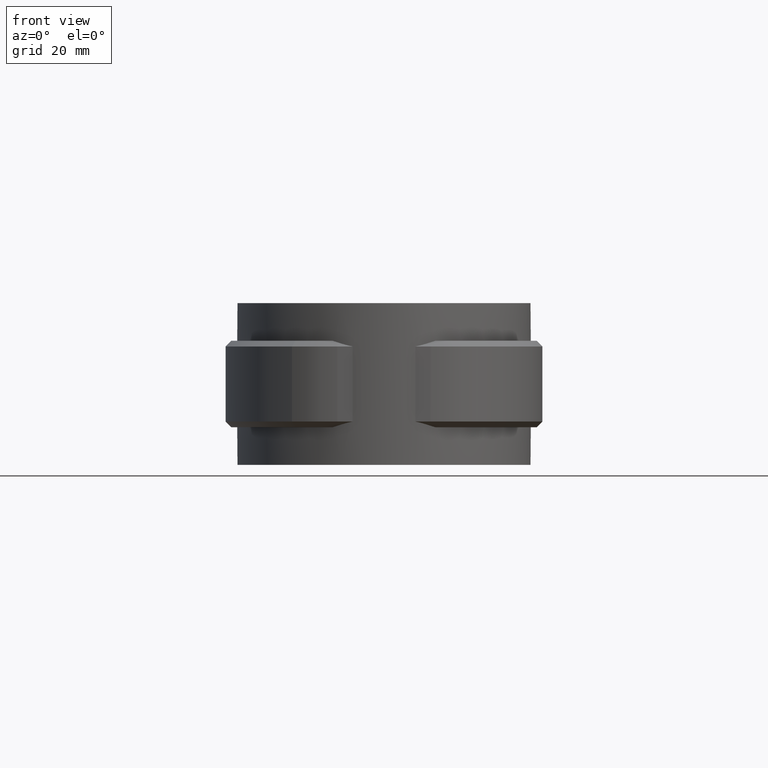
[diagram: clean part render]
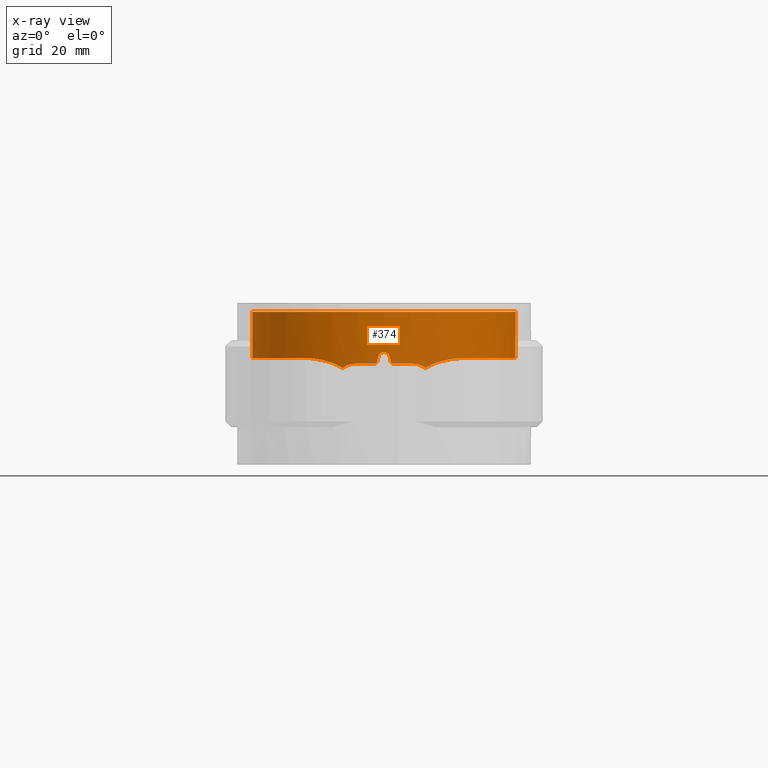
[diagram: x-ray — body ghosted, one internal face saturated and labeled with its STEP entity id]
A machine part, front view, then the same camera in x-ray: the body is ghosted and one INTERNAL B-rep face — a face not visible from any outside direction — is saturated and labeled: STEP entity #374.
In plain terms, the highlighted cylindrical surface (partial cylindrical patch) has radius 22.85 mm, axis along (0, 0, 1).
Its self-contained STEP definition (entity closure, byte-faithful):
#374 = ADVANCED_FACE( '', ( #733 ), #734, .F. );
#733 = FACE_OUTER_BOUND( '', #1682, .T. );
#734 = CYLINDRICAL_SURFACE( '', #1683, 22.8500000000000 );
#1682 = EDGE_LOOP( '', ( #3063, #3064, #3065, #3066, #3067, #3068, #3069, #3070, #3071, #3072, #3073, #3074, #3075, #3076, #3077, #3078 ) );
#1683 = AXIS2_PLACEMENT_3D( '', #3079, #3080, #3081 );
#3063 = ORIENTED_EDGE( '', *, *, #7074, .T. );
#3064 = ORIENTED_EDGE( '', *, *, #7043, .T. );
#3065 = ORIENTED_EDGE( '', *, *, #7047, .T. );
#3066 = ORIENTED_EDGE( '', *, *, #7078, .T. );
#3067 = ORIENTED_EDGE( '', *, *, #7079, .T. );
#3068 = ORIENTED_EDGE( '', *, *, #7080, .T. );
#3069 = ORIENTED_EDGE( '', *, *, #7081, .T. );
#3070 = ORIENTED_EDGE( '', *, *, #7082, .T. );
#3071 = ORIENTED_EDGE( '', *, *, #7083, .T. );
#3072 = ORIENTED_EDGE( '', *, *, #7084, .T. );
#3073 = ORIENTED_EDGE( '', *, *, #7075, .T. );
#3074 = ORIENTED_EDGE( '', *, *, #7067, .T. );
#3075 = ORIENTED_EDGE( '', *, *, #7085, .F. );
#3076 = ORIENTED_EDGE( '', *, *, #7034, .T. );
#3077 = ORIENTED_EDGE( '', *, *, #7086, .T. );
#3078 = ORIENTED_EDGE( '', *, *, #7063, .T. );
#3079 = CARTESIAN_POINT( '', ( 0.000000000000000, 0.000000000000000, 0.000000000000000 ) );
#3080 = DIRECTION( '', ( 0.000000000000000, 0.000000000000000, 1.00000000000000 ) );
#3081 = DIRECTION( '', ( 1.00000000000000, -6.12303176911189E-017, 0.000000000000000 ) );
#7034 = EDGE_CURVE( '', #8037, #8035, #8038, .T. );
#7043 = EDGE_CURVE( '', #8054, #8052, #8055, .T. );
#7047 = EDGE_CURVE( '', #8052, #8059, #8061, .T. );
#7063 = EDGE_CURVE( '', #8089, #8087, #8090, .T. );
#7067 = EDGE_CURVE( '', #8096, #8097, #8098, .T. );
#7074 = EDGE_CURVE( '', #8087, #8054, #8109, .T. );
#7075 = EDGE_CURVE( '', #8110, #8096, #8111, .T. );
#7078 = EDGE_CURVE( '', #8059, #8115, #8116, .T. );
#7079 = EDGE_CURVE( '', #8115, #8117, #8118, .T. );
#7080 = EDGE_CURVE( '', #8117, #8119, #8120, .T. );
#7081 = EDGE_CURVE( '', #8119, #8121, #8122, .T. );
#7082 = EDGE_CURVE( '', #8121, #8123, #8124, .T. );
#7083 = EDGE_CURVE( '', #8123, #8125, #8126, .T. );
#7084 = EDGE_CURVE( '', #8125, #8110, #8127, .T. );
#7085 = EDGE_CURVE( '', #8037, #8097, #8128, .T. );
#7086 = EDGE_CURVE( '', #8035, #8089, #8129, .T. );
#8035 = VERTEX_POINT( '', #9813 );
#8037 = VERTEX_POINT( '', #9815 );
#8038 = CIRCLE( '', #9816, 22.8500000000000 );
#8052 = VERTEX_POINT( '', #9860 );
#8054 = VERTEX_POINT( '', #9863 );
#8055 = B_SPLINE_CURVE_WITH_KNOTS( '', 3, ( #9864, #9865, #9866, #9867, #9868, #9869, #9870, #9871, #9872, #9873 ), .UNSPECIFIED., .F., .F., ( 4, 2, 2, 2, 4 ), ( 0.00877637653112455, 0.00937660491941818, 0.00997683330771180, 0.0105770616960054, 0.0111772900842991 ), .UNSPECIFIED. );
#8059 = VERTEX_POINT( '', #9899 );
#8061 = CIRCLE( '', #9902, 22.8500000000000 );
#8087 = VERTEX_POINT( '', #10166 );
#8089 = VERTEX_POINT( '', #10174 );
#8090 = B_SPLINE_CURVE_WITH_KNOTS( '', 3, ( #10175, #10176, #10177, #10178, #10179, #10180, #10181, #10182, #10183, #10184, #10185, #10186, #10187, #10188, #10189, #10190, #10191, #10192, #10193, #10194, #10195, #10196, #10197, #10198, #10199, #10200, #10201, #10202, #10203, #10204, #10205, #10206, #10207, #10208, #10209, #10210, #10211, #10212, #10213, #10214, #10215, #10216, #10217, #10218 ), .UNSPECIFIED., .F., .F., ( 4, 2, 2, 2, 2, 2, 2, 2, 2, 2, 2, 2, 2, 2, 2, 2, 2, 2, 2, 2, 2, 4 ), ( 9.34177181294034E-018, 0.00317004307811015, 0.00634008615622028, 0.00792510769527535, 0.00951012923433041, 0.0126801723124406, 0.0142651938514956, 0.0158502153905507, 0.0190202584686608, 0.0221903015467709, 0.0237753230858260, 0.0253603446248811, 0.0285303877029912, 0.0301154092420462, 0.0317004307811013, 0.0348704738592114, 0.0380405169373215, 0.0396255384763766, 0.0412105600154317, 0.0443806030935418, 0.0475506461716519, 0.0507206892497621 ), .UNSPECIFIED. );
#8096 = VERTEX_POINT( '', #10254 );
#8097 = VERTEX_POINT( '', #10255 );
#8098 = B_SPLINE_CURVE_WITH_KNOTS( '', 3, ( #10256, #10257, #10258, #10259, #10260, #10261, #10262, #10263, #10264, #10265, #10266, #10267, #10268, #10269, #10270, #10271, #10272, #10273, #10274, #10275, #10276, #10277, #10278, #10279, #10280, #10281, #10282, #10283, #10284, #10285, #10286, #10287, #10288, #10289, #10290, #10291, #10292, #10293, #10294, #10295, #10296, #10297, #10298, #10299 ), .UNSPECIFIED., .F., .F., ( 4, 2, 2, 2, 2, 2, 2, 2, 2, 2, 2, 2, 2, 2, 2, 2, 2, 2, 2, 2, 2, 4 ), ( 9.81307786677359E-018, 0.00317004304630908, 0.00634008609261816, 0.00792510761577270, 0.00951012913892724, 0.0126801721852363, 0.0142651937083909, 0.0158502152315454, 0.0190202582778545, 0.0221903013241636, 0.0237753228473181, 0.0253603443704726, 0.0285303874167817, 0.0301154089399363, 0.0317004304630908, 0.0348704735093999, 0.0380405165557090, 0.0396255380788635, 0.0412105596020181, 0.0443806026483272, 0.0475506456946363, 0.0507206887409454 ), .UNSPECIFIED. );
#8109 = B_SPLINE_CURVE_WITH_KNOTS( '', 3, ( #10398, #10399, #10400, #10401, #10402, #10403, #10404, #10405, #10406, #10407 ), .UNSPECIFIED., .F., .F., ( 4, 2, 2, 2, 4 ), ( 4.90653893338680E-018, 0.00193685903663415, 0.00387371807326829, 0.00581057710990243, 0.00774743614653657 ), .UNSPECIFIED. );
#8110 = VERTEX_POINT( '', #10408 );
#8111 = B_SPLINE_CURVE_WITH_KNOTS( '', 3, ( #10409, #10410, #10411, #10412, #10413, #10414, #10415, #10416, #10417, #10418 ), .UNSPECIFIED., .F., .F., ( 4, 2, 2, 2, 4 ), ( 1.22770241732585E-005, 0.00193683946452196, 0.00386140190487065, 0.00578596434521935, 0.00771052678556805 ), .UNSPECIFIED. );
#8115 = VERTEX_POINT( '', #10448 );
#8116 = B_SPLINE_CURVE_WITH_KNOTS( '', 3, ( #10449, #10450, #10451, #10452, #10453, #10454 ), .UNSPECIFIED., .F., .F., ( 4, 2, 4 ), ( 8.20849171219253E-018, 0.000336159592444283, 0.000672319184888557 ), .UNSPECIFIED. );
#8117 = VERTEX_POINT( '', #10455 );
#8118 = ELLIPSE( '', #10456, 104.094497545428, 22.8500000000000 );
#8119 = VERTEX_POINT( '', #10457 );
#8120 = B_SPLINE_CURVE_WITH_KNOTS( '', 3, ( #10458, #10459, #10460, #10461, #10462, #10463, #10464, #10465, #10466, #10467 ), .UNSPECIFIED., .F., .F., ( 4, 2, 2, 2, 4 ), ( 0.000000000000000, 0.000671637327123140, 0.00134327465424628, 0.00201491198136942, 0.00268654930849256 ), .UNSPECIFIED. );
#8121 = VERTEX_POINT( '', #10468 );
#8122 = ELLIPSE( '', #10469, 104.094550646447, 22.8500000000000 );
#8123 = VERTEX_POINT( '', #10470 );
#8124 = B_SPLINE_CURVE_WITH_KNOTS( '', 3, ( #10471, #10472, #10473, #10474, #10475, #10476 ), .UNSPECIFIED., .F., .F., ( 4, 2, 4 ), ( 4.33680868994202E-019, 0.000336166991338131, 0.000672333982676262 ), .UNSPECIFIED. );
#8125 = VERTEX_POINT( '', #10477 );
#8126 = CIRCLE( '', #10478, 22.8500000000000 );
#8127 = B_SPLINE_CURVE_WITH_KNOTS( '', 3, ( #10479, #10480, #10481, #10482, #10483, #10484 ), .UNSPECIFIED., .F., .F., ( 4, 2, 4 ), ( 3.46944695195361E-018, 0.00120286822902714, 0.00240573645805427 ), .UNSPECIFIED. );
#8128 = LINE( '', #10485, #10486 );
#8129 = LINE( '', #10487, #10488 );
#9813 = CARTESIAN_POINT( '', ( 5.97686116700199, 22.0544696284083, 0.000000000000000 ) );
#9815 = CARTESIAN_POINT( '', ( -5.97686116700201, 22.0544696284083, 0.000000000000000 ) );
#9816 = AXIS2_PLACEMENT_3D( '', #14428, #14429, #14430 );
#9860 = CARTESIAN_POINT( '', ( 5.00000000000000, -22.2962440783196, -9.00000000000000 ) );
#9863 = CARTESIAN_POINT( '', ( 7.17024469518741, -21.6958542355708, -9.75408704380942 ) );
#9864 = CARTESIAN_POINT( '', ( 7.17024469519022, -21.6958542355699, -9.75408704380517 ) );
#9865 = CARTESIAN_POINT( '', ( 7.01796001824560, -21.7461826709090, -9.63372816223457 ) );
#9866 = CARTESIAN_POINT( '', ( 6.85645411589327, -21.7977869176170, -9.52650941623306 ) );
#9867 = CARTESIAN_POINT( '', ( 6.51445896775813, -21.9024268497027, -9.33859490556102 ) );
#9868 = CARTESIAN_POINT( '', ( 6.33514685373399, -21.9550557524283, -9.25887470472623 ) );
#9869 = CARTESIAN_POINT( '', ( 5.96938883735207, -22.0573107077700, -9.13135107458249 ) );
#9870 = CARTESIAN_POINT( '', ( 5.78162313718466, -22.1073494578542, -9.08278654924921 ) );
#9871 = CARTESIAN_POINT( '', ( 5.39588101789661, -22.2046511837682, -9.01696099415415 ) );
#9872 = CARTESIAN_POINT( '', ( 5.19812709409454, -22.2518134797401, -8.99999999999996 ) );
#9873 = CARTESIAN_POINT( '', ( 5.00000000000000, -22.2962440783196, -8.99999999999996 ) );
#9899 = CARTESIAN_POINT( '', ( 1.64999999999995, -22.7903488345396, -9.00000000000000 ) );
#9902 = AXIS2_PLACEMENT_3D( '', #14438, #14439, #14440 );
#10166 = CARTESIAN_POINT( '', ( 13.7451875260167, -18.2535563623815, -7.99627160259138 ) );
#10174 = CARTESIAN_POINT( '', ( 5.97686116700199, 22.0544696284083, -7.99806293628719 ) );
#10175 = CARTESIAN_POINT( '', ( 5.97686116700198, 22.0544696284083, -7.99806293628720 ) );
#10176 = CARTESIAN_POINT( '', ( 7.01143548196948, 21.7740953028547, -7.99988755278500 ) );
#10177 = CARTESIAN_POINT( '', ( 8.01404762350000, 21.4246368353252, -8.00230956324210 ) );
#10178 = CARTESIAN_POINT( '', ( 9.95795472894794, 20.5931823779988, -8.00493905481669 ) );
#10179 = CARTESIAN_POINT( '', ( 10.8992422127147, 20.1111702307964, -8.00515454280294 ) );
#10180 = CARTESIAN_POINT( '', ( 12.2643926408483, 19.2870347738313, -8.00363431056714 ) );
#10181 = CARTESIAN_POINT( '', ( 12.7128878064341, 18.9945035227543, -8.00284112949908 ) );
#10182 = CARTESIAN_POINT( '', ( 13.5878610445616, 18.3787571040207, -8.00096519471322 ) );
#10183 = CARTESIAN_POINT( '', ( 14.0121140876056, 18.0572548725910, -7.99989040825878 ) );
#10184 = CARTESIAN_POINT( '', ( 15.2461850436421, 17.0529035816828, -7.99695436852238 ) );
#10185 = CARTESIAN_POINT( '', ( 16.0174960287352, 16.3303963988733, -7.99576079257590 ) );
#10186 = CARTESIAN_POINT( '', ( 17.0979388525817, 15.1678234558254, -7.99686273755623 ) );
#10187 = CARTESIAN_POINT( '', ( 17.4452867950226, 14.7671167835252, -7.99752471479612 ) );
#10188 = CARTESIAN_POINT( '', ( 18.1139169837869, 13.9388586678873, -7.99893911913194 ) );
#10189 = CARTESIAN_POINT( '', ( 18.4363869040529, 13.5095277098120, -7.99969322085147 ) );
#10190 = CARTESIAN_POINT( '', ( 19.3528943041518, 12.1954412025470, -8.00152579516512 ) );
#10191 = CARTESIAN_POINT( '', ( 19.8965015602484, 11.2857590722033, -8.00208610889800 ) );
#10192 = CARTESIAN_POINT( '', ( 20.8531823110764, 9.40127223697904, -8.00120365913698 ) );
#10193 = CARTESIAN_POINT( '', ( 21.2662520276613, 8.42646564670237, -7.99976228330781 ) );
#10194 = CARTESIAN_POINT( '', ( 21.7853527964981, 6.91411441776019, -7.99764423764790 ) );
#10195 = CARTESIAN_POINT( '', ( 21.9419239672955, 6.39990400198893, -7.99696693858724 ) );
#10196 = CARTESIAN_POINT( '', ( 22.2165583847864, 5.36948155380272, -7.99620273547804 ) );
#10197 = CARTESIAN_POINT( '', ( 22.3352128396471, 4.85191773757434, -7.99618901026058 ) );
#10198 = CARTESIAN_POINT( '', ( 22.6363537652718, 3.29231552430282, -7.99730974496167 ) );
#10199 = CARTESIAN_POINT( '', ( 22.7642766476596, 2.24339873368634, -7.99919040340763 ) );
#10200 = CARTESIAN_POINT( '', ( 22.8467180456463, 0.656225445339572, -8.00111405153713 ) );
#10201 = CARTESIAN_POINT( '', ( 22.8558934501877, 0.124859869719751, -8.00162434645790 ) );
#10202 = CARTESIAN_POINT( '', ( 22.8367899002396, -0.942593467893984, -8.00218138229479 ) );
#10203 = CARTESIAN_POINT( '', ( 22.8082982044997, -1.47902190764850, -8.00222512101892 ) );
#10204 = CARTESIAN_POINT( '', ( 22.6678380924190, -3.07009891870487, -8.00163221456186 ) );
#10205 = CARTESIAN_POINT( '', ( 22.5012258872981, -4.11511386099823, -8.00020197076186 ) );
#10206 = CARTESIAN_POINT( '', ( 22.0253389225093, -6.17444522761301, -7.99725528632869 ) );
#10207 = CARTESIAN_POINT( '', ( 21.7160731843294, -7.18876363629054, -7.99579791686863 ) );
#10208 = CARTESIAN_POINT( '', ( 21.1413121594365, -8.68638788384819, -7.99671454935107 ) );
#10209 = CARTESIAN_POINT( '', ( 20.9317676009025, -9.17966926231613, -7.99743481233078 ) );
#10210 = CARTESIAN_POINT( '', ( 20.4821229394220, -10.1433654453592, -7.99905703644062 ) );
#10211 = CARTESIAN_POINT( '', ( 20.2413902491186, -10.6154738524167, -7.99996020726915 ) );
#10212 = CARTESIAN_POINT( '', ( 19.4722333125456, -12.0030532422216, -8.00228544469425 ) );
#10213 = CARTESIAN_POINT( '', ( 18.8970748792681, -12.8899160043015, -8.00322899268585 ) );
#10214 = CARTESIAN_POINT( '', ( 17.6206061025088, -14.5864188261150, -8.00266976111400 ) );
#10215 = CARTESIAN_POINT( '', ( 16.9148082427623, -15.3996729535128, -8.00114093309447 ) );
#10216 = CARTESIAN_POINT( '', ( 15.4063552298102, -16.9087221130833, -7.99769043588948 ) );
#10217 = CARTESIAN_POINT( '', ( 14.6014655284411, -17.6087668493645, -7.99577809227568 ) );
#10218 = CARTESIAN_POINT( '', ( 13.7451875260167, -18.2535563623814, -7.99627160259135 ) );
#10254 = CARTESIAN_POINT( '', ( -13.7451875260167, -18.2535563623815, -7.99627160259138 ) );
#10255 = CARTESIAN_POINT( '', ( -5.97686116700199, 22.0544696284083, -7.99806293628720 ) );
#10256 = CARTESIAN_POINT( '', ( -13.7451875260167, -18.2535563623815, -7.99627160259142 ) );
#10257 = CARTESIAN_POINT( '', ( -14.6014626590747, -17.6087690100383, -7.99577809392949 ) );
#10258 = CARTESIAN_POINT( '', ( -15.4023885782134, -16.9117251612029, -7.99768192258079 ) );
#10259 = CARTESIAN_POINT( '', ( -16.8980576635274, -15.4173820424365, -8.00110206449429 ) );
#10260 = CARTESIAN_POINT( '', ( -17.5927878591592, -14.6200705381405, -8.00262879595025 ) );
#10261 = CARTESIAN_POINT( '', ( -18.5538737595713, -13.3476142180274, -8.00309218426568 ) );
#10262 = CARTESIAN_POINT( '', ( -18.8615277240534, -12.9093552327832, -8.00296404397960 ) );
#10263 = CARTESIAN_POINT( '', ( -19.4449927579842, -12.0125325079005, -8.00218297237273 ) );
#10264 = CARTESIAN_POINT( '', ( -19.7193742678155, -11.5563866712114, -8.00153467859180 ) );
#10265 = CARTESIAN_POINT( '', ( -20.4917933719758, -10.1653372809369, -7.99921031318955 ) );
#10266 = CARTESIAN_POINT( '', ( -20.9393430537976, -9.20792778083379, -7.99707160100254 ) );
#10267 = CARTESIAN_POINT( '', ( -21.5103351387830, -7.72708629450049, -7.99610943199217 ) );
#10268 = CARTESIAN_POINT( '', ( -21.6838838863340, -7.22599115546844, -7.99628155030870 ) );
#10269 = CARTESIAN_POINT( '', ( -21.9968060675225, -6.20856596991012, -7.99721535703736 ) );
#10270 = CARTESIAN_POINT( '', ( -22.1366207863939, -5.69014253708242, -7.99794865544021 ) );
#10271 = CARTESIAN_POINT( '', ( -22.4991120053981, -4.12956010977327, -8.00018055878469 ) );
#10272 = CARTESIAN_POINT( '', ( -22.6657057876294, -3.08300421862503, -8.00161499496216 ) );
#10273 = CARTESIAN_POINT( '', ( -22.8535063778009, -0.977946881608828, -8.00242400815246 ) );
#10274 = CARTESIAN_POINT( '', ( -22.8747089415520, 0.0805549129978776, -8.00179842017109 ) );
#10275 = CARTESIAN_POINT( '', ( -22.7945728596217, 1.67750490642551, -7.99988256730916 ) );
#10276 = CARTESIAN_POINT( '', ( -22.7488263826334, 2.21307448449684, -7.99909993040698 ) );
#10277 = CARTESIAN_POINT( '', ( -22.6208392431182, 3.27176288843334, -7.99763577880347 ) );
#10278 = CARTESIAN_POINT( '', ( -22.5386451866891, 3.79635526330946, -7.99695380675901 ) );
#10279 = CARTESIAN_POINT( '', ( -22.2385985378765, 5.35617359857218, -7.99581439911110 ) );
#10280 = CARTESIAN_POINT( '', ( -21.9675338496991, 6.37750653398686, -7.99689788653803 ) );
#10281 = CARTESIAN_POINT( '', ( -21.4542049025115, 7.88164007413646, -7.99899681372121 ) );
#10282 = CARTESIAN_POINT( '', ( -21.2652436323218, 8.37835717821458, -7.99973674000939 ) );
#10283 = CARTESIAN_POINT( '', ( -20.8507946196637, 9.36225504226127, -8.00094347261856 ) );
#10284 = CARTESIAN_POINT( '', ( -20.6249821364067, 9.84967442949806, -8.00140766923122 ) );
#10285 = CARTESIAN_POINT( '', ( -19.9032645714036, 11.2745934462192, -8.00209245863423 ) );
#10286 = CARTESIAN_POINT( '', ( -19.3602098795956, 12.1828406030148, -8.00153377176460 ) );
#10287 = CARTESIAN_POINT( '', ( -18.1530659394078, 13.9178133605811, -7.99913320625502 ) );
#10288 = CARTESIAN_POINT( '', ( -17.4889843485493, 14.7445441182418, -7.99729036923796 ) );
#10289 = CARTESIAN_POINT( '', ( -16.3988068278135, 15.9212922943994, -7.99613600533814 ) );
#10290 = CARTESIAN_POINT( '', ( -16.0209440561239, 16.3013672571772, -7.99608691237625 ) );
#10291 = CARTESIAN_POINT( '', ( -15.2453517644984, 17.0289304561245, -7.99702610753498 ) );
#10292 = CARTESIAN_POINT( '', ( -14.8464049878327, 17.3777565423572, -7.99790707172347 ) );
#10293 = CARTESIAN_POINT( '', ( -13.6166535096742, 18.3800952454065, -8.00082820811167 ) );
#10294 = CARTESIAN_POINT( '', ( -12.7530950942392, 18.9896796107435, -8.00305973268799 ) );
#10295 = CARTESIAN_POINT( '', ( -10.9375626850127, 20.0902734852668, -8.00514104661394 ) );
#10296 = CARTESIAN_POINT( '', ( -9.98007747159387, 20.5829714988920, -8.00496024213077 ) );
#10297 = CARTESIAN_POINT( '', ( -8.01883971137840, 21.4233254128867, -8.00232466419275 ) );
#10298 = CARTESIAN_POINT( '', ( -7.01143530155086, 21.7740953517490, -7.99988755246681 ) );
#10299 = CARTESIAN_POINT( '', ( -5.97686116700199, 22.0544696284083, -7.99806293628720 ) );
#10398 = CARTESIAN_POINT( '', ( 13.7451875260167, -18.2535563623814, -7.99627160259138 ) );
#10399 = CARTESIAN_POINT( '', ( 13.2277917529550, -18.6431627374196, -8.00648650956823 ) );
#10400 = CARTESIAN_POINT( '', ( 12.6966610756508, -19.0086940085891, -8.04288191382708 ) );
#10401 = CARTESIAN_POINT( '', ( 11.6080044819275, -19.6923813270429, -8.17431115934382 ) );
#10402 = CARTESIAN_POINT( '', ( 11.0500078105296, -20.0104897910928, -8.26950871493945 ) );
#10403 = CARTESIAN_POINT( '', ( 9.92639298903797, -20.5909955203573, -8.53304212090701 ) );
#10404 = CARTESIAN_POINT( '', ( 9.35588948381041, -20.8555785453974, -8.70238079946328 ) );
#10405 = CARTESIAN_POINT( '', ( 8.24024761362309, -21.3210258609358, -9.13870976108172 ) );
#10406 = CARTESIAN_POINT( '', ( 7.69167861809985, -21.5235259751088, -9.40348664637711 ) );
#10407 = CARTESIAN_POINT( '', ( 7.17024469518742, -21.6958542355708, -9.75408704380943 ) );
#10408 = CARTESIAN_POINT( '', ( -7.17024469519212, -21.6958542355694, -9.75408704380659 ) );
#10409 = CARTESIAN_POINT( '', ( -7.17024469519197, -21.6958542355693, -9.75408704380636 ) );
#10410 = CARTESIAN_POINT( '', ( -7.69174031474826, -21.5235055850350, -9.40344516294426 ) );
#10411 = CARTESIAN_POINT( '', ( -8.24029966391812, -21.3210038117202, -9.13869010300734 ) );
#10412 = CARTESIAN_POINT( '', ( -9.35581593698353, -20.8556095629891, -8.70240886487221 ) );
#10413 = CARTESIAN_POINT( '', ( -9.92636718308291, -20.5910013747996, -8.53305730762234 ) );
#10414 = CARTESIAN_POINT( '', ( -11.0496069818502, -20.0107043508477, -8.26959359487837 ) );
#10415 = CARTESIAN_POINT( '', ( -11.6070435510115, -19.6929623613240, -8.17444699709237 ) );
#10416 = CARTESIAN_POINT( '', ( -12.6964791998723, -19.0088306449086, -8.04288406344231 ) );
#10417 = CARTESIAN_POINT( '', ( -13.2277881242195, -18.6431654699090, -8.00648658121006 ) );
#10418 = CARTESIAN_POINT( '', ( -13.7451875260167, -18.2535563623814, -7.99627160259135 ) );
#10448 = CARTESIAN_POINT( '', ( 1.16219499999999, -22.8204251227267, -8.60975599999999 ) );
#10449 = CARTESIAN_POINT( '', ( 1.64999999999995, -22.7903488345396, -8.99999999999995 ) );
#10450 = CARTESIAN_POINT( '', ( 1.53663326388832, -22.7985564805016, -9.00000000048652 ) );
#10451 = CARTESIAN_POINT( '', ( 1.42653054457525, -22.8056002252954, -8.96146270835897 ) );
#10452 = CARTESIAN_POINT( '', ( 1.24917237601912, -22.8160022660762, -8.81972438130845 ) );
#10453 = CARTESIAN_POINT( '', ( 1.18714543685195, -22.8191544508263, -8.72064683267554 ) );
#10454 = CARTESIAN_POINT( '', ( 1.16219499999999, -22.8204251227267, -8.60975599999999 ) );
#10455 = CARTESIAN_POINT( '', ( 0.975609757981813, -22.8291630508026, -7.78048781325256 ) );
#10456 = AXIS2_PLACEMENT_3D( '', #14441, #14442, #14443 );
#10457 = CARTESIAN_POINT( '', ( -0.975610000000027, -22.8291630404599, -7.78048800000004 ) );
#10458 = CARTESIAN_POINT( '', ( 0.975609757981815, -22.8291630508026, -7.78048781325255 ) );
#10459 = CARTESIAN_POINT( '', ( 0.925759611057571, -22.8312934087867, -7.55893169483417 ) );
#10460 = CARTESIAN_POINT( '', ( 0.802000848113016, -22.8366098643602, -7.36098155301806 ) );
#10461 = CARTESIAN_POINT( '', ( 0.447419710234552, -22.8463076023295, -7.07730528269426 ) );
#10462 = CARTESIAN_POINT( '', ( 0.227103399425461, -22.8500000104525, -6.99999978043801 ) );
#10463 = CARTESIAN_POINT( '', ( -0.227105502769266, -22.8499999895475, -7.00000021269580 ) );
#10464 = CARTESIAN_POINT( '', ( -0.447456633074006, -22.8463067278190, -7.07732824922196 ) );
#10465 = CARTESIAN_POINT( '', ( -0.801998773867362, -22.8366097857538, -7.36098614709214 ) );
#10466 = CARTESIAN_POINT( '', ( -0.925759891921149, -22.8312933973134, -7.55893185619929 ) );
#10467 = CARTESIAN_POINT( '', ( -0.975610000000027, -22.8291630404599, -7.78048800000004 ) );
#10468 = CARTESIAN_POINT( '', ( -1.16219512100914, -22.8204251165639, -8.60975609337373 ) );
#10469 = AXIS2_PLACEMENT_3D( '', #14444, #14445, #14446 );
#10470 = CARTESIAN_POINT( '', ( -1.65000000000003, -22.7903488345396, -9.00000000000000 ) );
#10471 = CARTESIAN_POINT( '', ( -1.16219512100916, -22.8204251165639, -8.60975609337372 ) );
#10472 = CARTESIAN_POINT( '', ( -1.18714554844780, -22.8191544450104, -8.72064688643459 ) );
#10473 = CARTESIAN_POINT( '', ( -1.24916474685743, -22.8160027002550, -8.81971695351357 ) );
#10474 = CARTESIAN_POINT( '', ( -1.42653137035029, -22.8056001901341, -8.96146462712579 ) );
#10475 = CARTESIAN_POINT( '', ( -1.53663329736968, -22.7985564780776, -8.99999999999994 ) );
#10476 = CARTESIAN_POINT( '', ( -1.65000000000003, -22.7903488345396, -8.99999999999994 ) );
#10477 = CARTESIAN_POINT( '', ( -5.00000000000005, -22.2962440783196, -9.00000000000000 ) );
#10478 = AXIS2_PLACEMENT_3D( '', #14447, #14448, #14449 );
#10479 = CARTESIAN_POINT( '', ( -5.00000000000005, -22.2962440783196, -8.99999999999997 ) );
#10480 = CARTESIAN_POINT( '', ( -5.39698853567081, -22.2072182015225, -8.99999999999997 ) );
#10481 = CARTESIAN_POINT( '', ( -5.78043815525076, -22.1101147685204, -9.06561690495290 ) );
#10482 = CARTESIAN_POINT( '', ( -6.52180220347939, -21.9028933331310, -9.32380904050121 ) );
#10483 = CARTESIAN_POINT( '', ( -6.86244019934732, -21.7975802856028, -9.51081237162270 ) );
#10484 = CARTESIAN_POINT( '', ( -7.17024469519209, -21.6958542355693, -9.75408704380656 ) );
#10485 = CARTESIAN_POINT( '', ( -5.97686116700201, 22.0544696284083, 0.000000000000000 ) );
#10486 = VECTOR( '', #14450, 1000.00000000000 );
#10487 = CARTESIAN_POINT( '', ( 5.97686116700199, 22.0544696284083, 0.000000000000000 ) );
#10488 = VECTOR( '', #14451, 1000.00000000000 );
#14428 = CARTESIAN_POINT( '', ( 0.000000000000000, 0.000000000000000, 0.000000000000000 ) );
#14429 = DIRECTION( '', ( 0.000000000000000, 0.000000000000000, 1.00000000000000 ) );
#14430 = DIRECTION( '', ( 1.00000000000000, -6.12303176911189E-017, 0.000000000000000 ) );
#14438 = CARTESIAN_POINT( '', ( 0.000000000000000, 0.000000000000000, -9.00000000000000 ) );
#14439 = DIRECTION( '', ( 6.12303176911189E-017, 0.000000000000000, -1.00000000000000 ) );
#14440 = DIRECTION( '', ( -1.00000000000000, 0.000000000000000, -6.12303176911189E-017 ) );
#14441 = CARTESIAN_POINT( '', ( 0.000000000000000, 0.000000000000000, -3.44444212055029 ) );
#14442 = DIRECTION( '', ( -0.975609781292647, 0.000000000000000, -0.219512083143762 ) );
#14443 = DIRECTION( '', ( 0.219512083143762, 0.000000000000000, -0.975609781292647 ) );
#14444 = CARTESIAN_POINT( '', ( 0.000000000000000, 0.000000000000000, -3.44443890776446 ) );
#14445 = DIRECTION( '', ( 0.975609806487711, 0.000000000000000, -0.219511971165610 ) );
#14446 = DIRECTION( '', ( -0.219511971165610, 0.000000000000000, -0.975609806487711 ) );
#14447 = CARTESIAN_POINT( '', ( 0.000000000000000, 0.000000000000000, -9.00000000000000 ) );
#14448 = DIRECTION( '', ( 6.12303176911189E-017, 0.000000000000000, -1.00000000000000 ) );
#14449 = DIRECTION( '', ( -1.00000000000000, 0.000000000000000, -6.12303176911189E-017 ) );
#14450 = DIRECTION( '', ( 0.000000000000000, 0.000000000000000, -1.00000000000000 ) );
#14451 = DIRECTION( '', ( 0.000000000000000, 0.000000000000000, -1.00000000000000 ) );